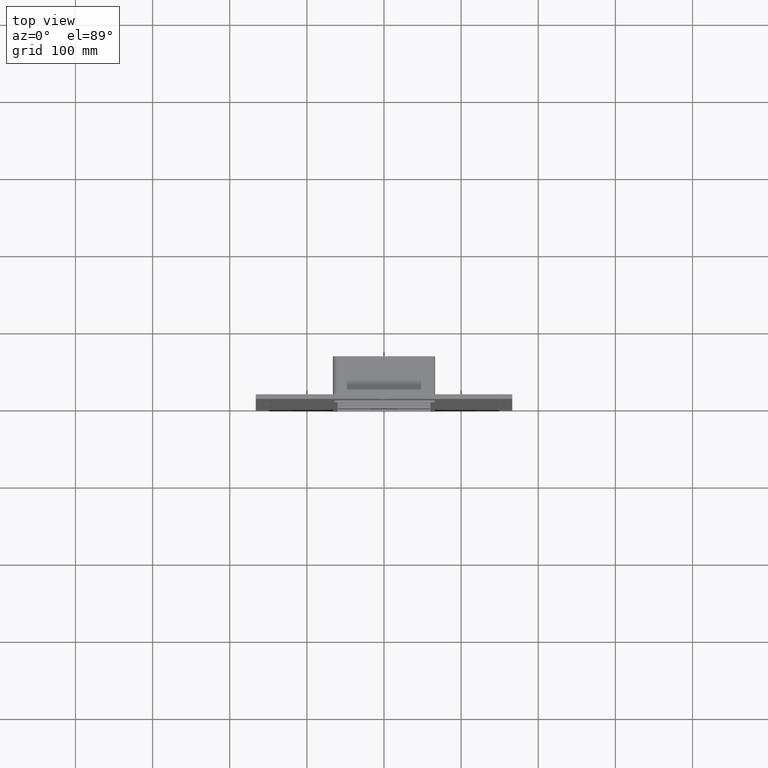
[diagram: clean part render]
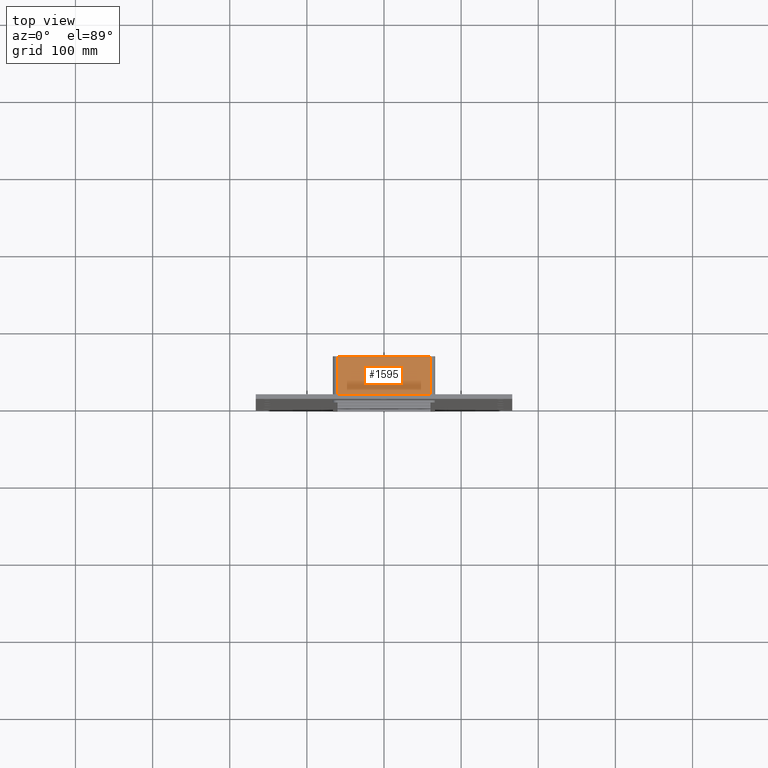
[diagram: same view with one face highlighted and labeled with its STEP entity id]
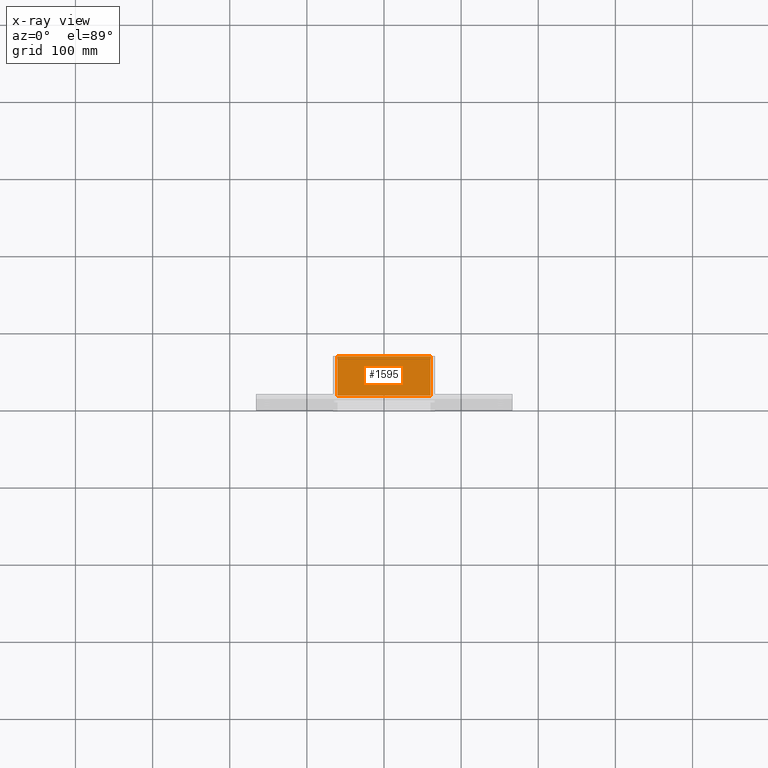
[diagram: x-ray of the same camera — body ghosted, the highlighted face saturated]
A machine part, top view. The second image highlights one B-rep face of the part: STEP entity #1595.
The next image is the same camera in x-ray: the body ghosted, the highlighted face saturated — about 0% of this face is hidden behind the body in this view.
In plain terms, the highlighted planar face has unit normal (0, 0, 1).
Its self-contained STEP definition (entity closure, byte-faithful):
#874=CARTESIAN_POINT('',(60.25,6.000000000000001,343.00000000000011));
#875=VERTEX_POINT('',#874);
#883=CARTESIAN_POINT('',(-60.25,6.000000000000001,343.00000000000011));
#884=VERTEX_POINT('',#883);
#885=CARTESIAN_POINT('',(-60.25,6.000000000000001,343.00000000000011));
#886=DIRECTION('',(1.0,0.0,0.0));
#887=VECTOR('',#886,120.5);
#888=LINE('',#885,#887);
#889=EDGE_CURVE('',#884,#875,#888,.T.);
#1206=CARTESIAN_POINT('',(60.25,57.0,343.00000000000011));
#1207=VERTEX_POINT('',#1206);
#1215=CARTESIAN_POINT('',(60.25,57.0,343.00000000000011));
#1216=DIRECTION('',(0.0,-1.0,0.0));
#1217=VECTOR('',#1216,51.0);
#1218=LINE('',#1215,#1217);
#1219=EDGE_CURVE('',#1207,#875,#1218,.T.);
#1560=CARTESIAN_POINT('',(-60.25,57.0,343.00000000000011));
#1561=VERTEX_POINT('',#1560);
#1562=CARTESIAN_POINT('',(-60.25,6.000000000000001,343.00000000000011));
#1563=DIRECTION('',(0.0,1.0,0.0));
#1564=VECTOR('',#1563,51.0);
#1565=LINE('',#1562,#1564);
#1566=EDGE_CURVE('',#884,#1561,#1565,.T.);
#1579=CARTESIAN_POINT('',(-66.25,0.0,343.00000000000011));
#1580=DIRECTION('',(0.0,0.0,1.0));
#1581=DIRECTION('',(1.0,0.0,0.0));
#1582=AXIS2_PLACEMENT_3D('',#1579,#1580,#1581);
#1583=PLANE('',#1582);
#1584=ORIENTED_EDGE('',*,*,#889,.T.);
#1585=ORIENTED_EDGE('',*,*,#1219,.F.);
#1586=CARTESIAN_POINT('',(-60.25,57.0,343.00000000000011));
#1587=DIRECTION('',(1.0,0.0,0.0));
#1588=VECTOR('',#1587,120.5);
#1589=LINE('',#1586,#1588);
#1590=EDGE_CURVE('',#1561,#1207,#1589,.T.);
#1591=ORIENTED_EDGE('',*,*,#1590,.F.);
#1592=ORIENTED_EDGE('',*,*,#1566,.F.);
#1593=EDGE_LOOP('',(#1584,#1585,#1591,#1592));
#1594=FACE_OUTER_BOUND('',#1593,.T.);
#1595=ADVANCED_FACE('',(#1594),#1583,.T.);